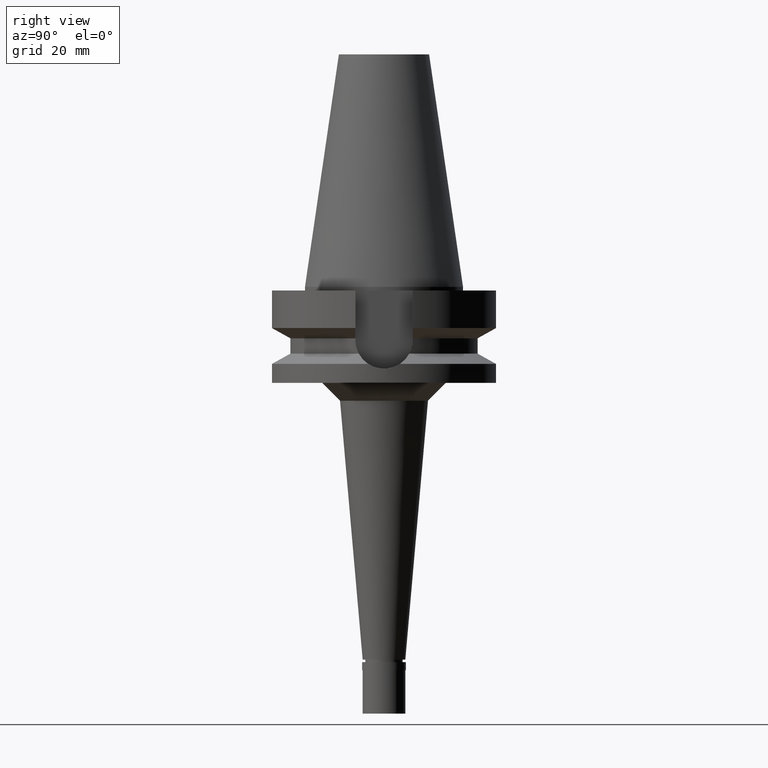
[diagram: clean part render]
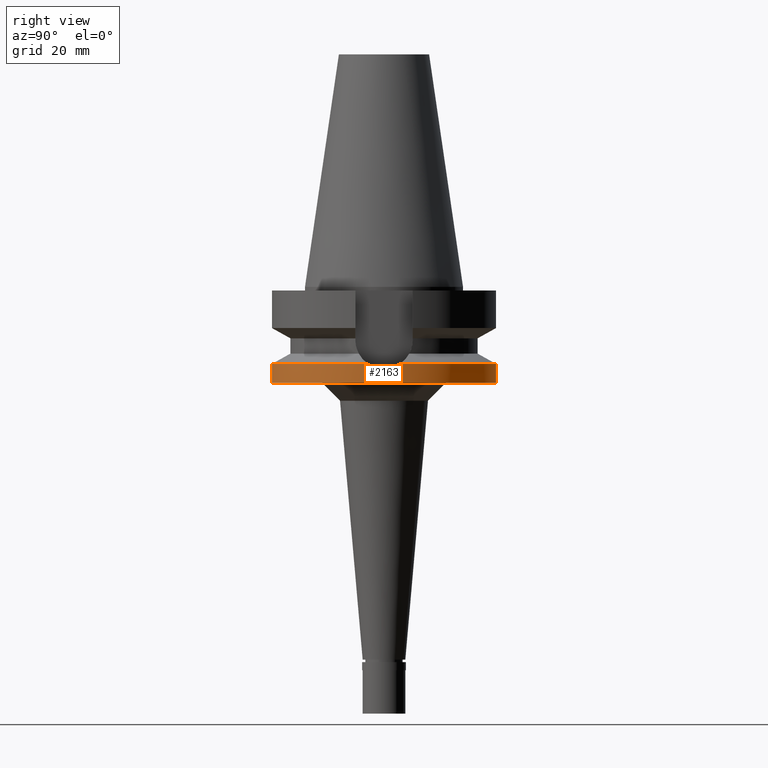
[diagram: same view with one face highlighted and labeled with its STEP entity id]
A machine part, right view. The second image highlights one B-rep face of the part: STEP entity #2163.
In plain terms, the highlighted cylindrical surface (partial cylindrical patch) has radius 31.5 mm, axis along (0, 0, -1).
Its self-contained STEP definition (entity closure, byte-faithful):
#4 = VERTEX_POINT ( 'NONE', #2513 ) ;
#56 = VECTOR ( 'NONE', #1069, 1000.000000000000000 ) ;
#70 = CARTESIAN_POINT ( 'NONE',  ( 31.27811616765163905, -3.746663411054693693, -22.08609477246627861 ) ) ;
#123 = EDGE_CURVE ( 'NONE', #637, #895, #1299, .T. ) ;
#124 = CARTESIAN_POINT ( 'NONE',  ( 31.17899877608999759, 4.485536235554000051, -21.63449434733000132 ) ) ;
#131 = LINE ( 'NONE', #825, #56 ) ;
#205 = CARTESIAN_POINT ( 'NONE',  ( 0.0000000000000000000, 31.50000000000000000, -21.63449434733000132 ) ) ;
#280 = CARTESIAN_POINT ( 'NONE',  ( 31.17899877608999759, 4.485536235554000051, -21.63449434733000132 ) ) ;
#317 = CARTESIAN_POINT ( 'NONE',  ( 31.36324472113292927, 3.008186403890045657, -22.45010119728498665 ) ) ;
#337 = DIRECTION ( 'NONE',  ( 0.0000000000000000000, 1.000000000000000000, 0.0000000000000000000 ) ) ;
#344 = CARTESIAN_POINT ( 'NONE',  ( 31.42563404118929427, 2.162357063350626163, -22.70443063265789974 ) ) ;
#374 = VERTEX_POINT ( 'NONE', #1457 ) ;
#387 = CARTESIAN_POINT ( 'NONE',  ( 0.0000000000000000000, -31.50000000000000000, -21.63449434733000132 ) ) ;
#469 = EDGE_CURVE ( 'NONE', #895, #2472, #1847, .T. ) ;
#477 = CIRCLE ( 'NONE', #2790, 31.50000000000000000 ) ;
#485 = CYLINDRICAL_SURFACE ( 'NONE', #1701, 31.50000000000000000 ) ;
#493 = CARTESIAN_POINT ( 'NONE',  ( 31.41250465254785595, -2.344685119744181812, -22.65098129005876615 ) ) ;
#552 = CARTESIAN_POINT ( 'NONE',  ( 31.44587474454636933, 1.845305156628089804, -22.78628520785608202 ) ) ;
#587 = ORIENTED_EDGE ( 'NONE', *, *, #469, .F. ) ;
#601 = EDGE_LOOP ( 'NONE', ( #878, #1257, #2430, #1468, #882, #587, #842 ) ) ;
#637 = VERTEX_POINT ( 'NONE', #2680 ) ;
#642 = CARTESIAN_POINT ( 'NONE',  ( 0.0000000000000000000, 2.136641270472000125E-14, -27.00000000000000000 ) ) ;
#714 = CARTESIAN_POINT ( 'NONE',  ( 31.50000030227000636, -0.7652255584414017209, -23.00000000000000711 ) ) ;
#715 = VERTEX_POINT ( 'NONE', #205 ) ;
#762 = CARTESIAN_POINT ( 'NONE',  ( 31.50000030227000636, 0.3826090919677934132, -23.00000000000000711 ) ) ;
#767 = CARTESIAN_POINT ( 'NONE',  ( 31.33671814101796826, -3.204274408581712308, -22.33747821274942780 ) ) ;
#813 = DIRECTION ( 'NONE',  ( 0.0000000000000000000, 0.0000000000000000000, -1.000000000000000000 ) ) ;
#825 = CARTESIAN_POINT ( 'NONE',  ( 0.0000000000000000000, 31.50000000000000000, -21.63449434733000132 ) ) ;
#842 = ORIENTED_EDGE ( 'NONE', *, *, #123, .F. ) ;
#869 = EDGE_CURVE ( 'NONE', #715, #2472, #477, .T. ) ;
#878 = ORIENTED_EDGE ( 'NONE', *, *, #1806, .T. ) ;
#882 = ORIENTED_EDGE ( 'NONE', *, *, #869, .T. ) ;
#895 = VERTEX_POINT ( 'NONE', #1743 ) ;
#946 = CIRCLE ( 'NONE', #1628, 31.50000000000001421 ) ;
#974 = CARTESIAN_POINT ( 'NONE',  ( 31.47113575803176744, -1.554964652679243109, -22.89006402776612958 ) ) ;
#982 = CARTESIAN_POINT ( 'NONE',  ( 31.41961539193200537, 2.247536052740984225, -22.67995511559226429 ) ) ;
#989 = CARTESIAN_POINT ( 'NONE',  ( 31.17899877608999759, -4.485536235554000051, -21.63449434733000132 ) ) ;
#1069 = DIRECTION ( 'NONE',  ( 0.0000000000000000000, 1.099151708819000049E-13, -1.000000000000000000 ) ) ;
#1118 = DIRECTION ( 'NONE',  ( 0.0000000000000000000, -1.105773104655000034E-13, -1.000000000000000000 ) ) ;
#1134 = CARTESIAN_POINT ( 'NONE',  ( 0.0000000000000000000, 0.0000000000000000000, -21.63449434733000132 ) ) ;
#1189 = CARTESIAN_POINT ( 'NONE',  ( 31.38993145516023020, -2.631335983620059160, -22.55874663173043260 ) ) ;
#1256 = CARTESIAN_POINT ( 'NONE',  ( 31.47113333815071456, 1.356640496115523176, -22.88731189945009348 ) ) ;
#1257 = ORIENTED_EDGE ( 'NONE', *, *, #1649, .T. ) ;
#1270 = CARTESIAN_POINT ( 'NONE',  ( 31.28511117652554319, 3.747948078965772645, -22.12944254107574693 ) ) ;
#1299 = B_SPLINE_CURVE_WITH_KNOTS ( 'NONE', 3,
 ( #989, #2145, #70, #767, #2368, #2800, #1189, #1857, #2826, #2341, #2562, #493, #974, #714, #1412 ),
 .UNSPECIFIED., .F., .F.,
 ( 4, 2, 2, 1, 1, 1, 2, 2, 4 ),
 ( 0.0000000000000000000, 0.2499999999999967804, 0.3749999999999951705, 0.4374999999999947264, 0.4687499999999947264, 0.4843749999999949485, 0.4921874999999948375, 0.4999999999999947820, 1.000000000000000000 ),
 .UNSPECIFIED. ) ;
#1332 = DIRECTION ( 'NONE',  ( 0.0000000000000000000, -1.000000000000000000, 0.0000000000000000000 ) ) ;
#1412 = CARTESIAN_POINT ( 'NONE',  ( 31.50000030226999570, 4.155405463589999246E-14, -23.00000138148999795 ) ) ;
#1423 = CARTESIAN_POINT ( 'NONE',  ( 0.0000000000000000000, 2.136641270472000125E-14, 74.46999999999999886 ) ) ;
#1457 = CARTESIAN_POINT ( 'NONE',  ( 0.0000000000000000000, 31.50000000000000000, -27.00000000000000000 ) ) ;
#1468 = ORIENTED_EDGE ( 'NONE', *, *, #1609, .F. ) ;
#1556 = DIRECTION ( 'NONE',  ( 0.0000000000000000000, 0.0000000000000000000, 1.000000000000000000 ) ) ;
#1609 = EDGE_CURVE ( 'NONE', #715, #374, #131, .T. ) ;
#1611 = FACE_OUTER_BOUND ( 'NONE', #601, .T. ) ;
#1628 = AXIS2_PLACEMENT_3D ( 'NONE', #1134, #1814, #2516 ) ;
#1649 = EDGE_CURVE ( 'NONE', #2589, #4, #1995, .T. ) ;
#1659 = AXIS2_PLACEMENT_3D ( 'NONE', #642, #1556, #1332 ) ;
#1677 = CARTESIAN_POINT ( 'NONE',  ( 31.43707934141626836, 1.991785373912805079, -22.75083979992891869 ) ) ;
#1689 = CARTESIAN_POINT ( 'NONE',  ( 31.49278356124018430, 0.7711873038316967577, -22.97267690000162332 ) ) ;
#1701 = AXIS2_PLACEMENT_3D ( 'NONE', #1423, #1864, #2805 ) ;
#1716 = CARTESIAN_POINT ( 'NONE',  ( 31.41418307692435263, 2.322078179462052194, -22.65782554032965379 ) ) ;
#1743 = CARTESIAN_POINT ( 'NONE',  ( 31.50000030226999570, 4.155405463589999246E-14, -23.00000138148999795 ) ) ;
#1799 = CIRCLE ( 'NONE', #1659, 31.50000000000000000 ) ;
#1806 = EDGE_CURVE ( 'NONE', #637, #2589, #946, .T. ) ;
#1814 = DIRECTION ( 'NONE',  ( 0.0000000000000000000, 0.0000000000000000000, -1.000000000000000000 ) ) ;
#1847 = B_SPLINE_CURVE_WITH_KNOTS ( 'NONE', 3,
 ( #2385, #762, #1689, #1256, #2608, #552, #1677, #344, #982, #1926, #1938, #1716, #317, #1270, #124 ),
 .UNSPECIFIED., .F., .F.,
 ( 4, 2, 2, 1, 1, 1, 2, 2, 4 ),
 ( 0.0000000000000000000, 0.2500000000000070499, 0.3750000000000108247, 0.4375000000000126565, 0.4687500000000139888, 0.4843750000000142109, 0.4921875000000140443, 0.5000000000000138778, 1.000000000000000000 ),
 .UNSPECIFIED. ) ;
#1851 = CARTESIAN_POINT ( 'NONE',  ( 0.0000000000000000000, -31.50000000000000000, -21.63449434733000132 ) ) ;
#1857 = CARTESIAN_POINT ( 'NONE',  ( 31.40205153628879131, -2.481143929498154765, -22.60832449600521699 ) ) ;
#1864 = DIRECTION ( 'NONE',  ( 0.0000000000000000000, 0.0000000000000000000, -1.000000000000000000 ) ) ;
#1926 = CARTESIAN_POINT ( 'NONE',  ( 31.41697254243377913, 2.284015593821564938, -22.66919255135193012 ) ) ;
#1938 = CARTESIAN_POINT ( 'NONE',  ( 31.41519654757097513, 2.308329250112936659, -22.66195675239042018 ) ) ;
#1995 = LINE ( 'NONE', #387, #2156 ) ;
#2084 = EDGE_CURVE ( 'NONE', #4, #374, #1799, .T. ) ;
#2145 = CARTESIAN_POINT ( 'NONE',  ( 31.23205437638301873, -4.116746327371649805, -21.88196564590952065 ) ) ;
#2156 = VECTOR ( 'NONE', #1118, 1000.000000000000000 ) ;
#2163 = ADVANCED_FACE ( 'NONE', ( #1611 ), #485, .T. ) ;
#2166 = CARTESIAN_POINT ( 'NONE',  ( 0.0000000000000000000, 0.0000000000000000000, -21.63449434733000132 ) ) ;
#2341 = CARTESIAN_POINT ( 'NONE',  ( 31.41023747457276372, -2.374835805175408598, -22.64173436496399106 ) ) ;
#2368 = CARTESIAN_POINT ( 'NONE',  ( 31.35450367988398668, -3.025551445312248067, -22.41216023069756247 ) ) ;
#2385 = CARTESIAN_POINT ( 'NONE',  ( 31.50000030226999570, 4.155405463589999246E-14, -23.00000138148999795 ) ) ;
#2430 = ORIENTED_EDGE ( 'NONE', *, *, #2084, .T. ) ;
#2472 = VERTEX_POINT ( 'NONE', #280 ) ;
#2513 = CARTESIAN_POINT ( 'NONE',  ( 0.0000000000000000000, -31.50000000000000000, -27.00000000000000000 ) ) ;
#2516 = DIRECTION ( 'NONE',  ( 0.9898094849552905306, -0.1423979757318985240, 0.0000000000000000000 ) ) ;
#2562 = CARTESIAN_POINT ( 'NONE',  ( 31.41183231690147792, -2.353663757187844041, -22.64823938058641062 ) ) ;
#2589 = VERTEX_POINT ( 'NONE', #1851 ) ;
#2608 = CARTESIAN_POINT ( 'NONE',  ( 31.46211241186344765, 1.552211430956195404, -22.85146869850018447 ) ) ;
#2680 = CARTESIAN_POINT ( 'NONE',  ( 31.17899877608999759, -4.485536235554000051, -21.63449434733000132 ) ) ;
#2790 = AXIS2_PLACEMENT_3D ( 'NONE', #2166, #813, #337 ) ;
#2800 = CARTESIAN_POINT ( 'NONE',  ( 31.37855930979883112, -2.761990094121934636, -22.51192666813035714 ) ) ;
#2805 = DIRECTION ( 'NONE',  ( 0.0000000000000000000, -1.000000000000000000, 0.0000000000000000000 ) ) ;
#2826 = CARTESIAN_POINT ( 'NONE',  ( 31.40782472140481119, -2.406637570942694815, -22.63189169563574055 ) ) ;